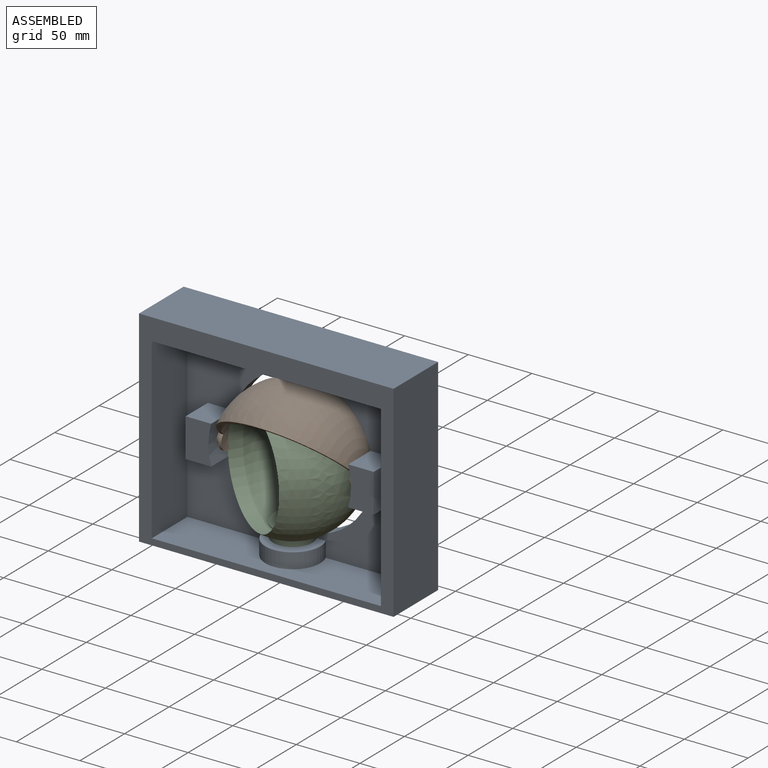
[diagram: assembled view]
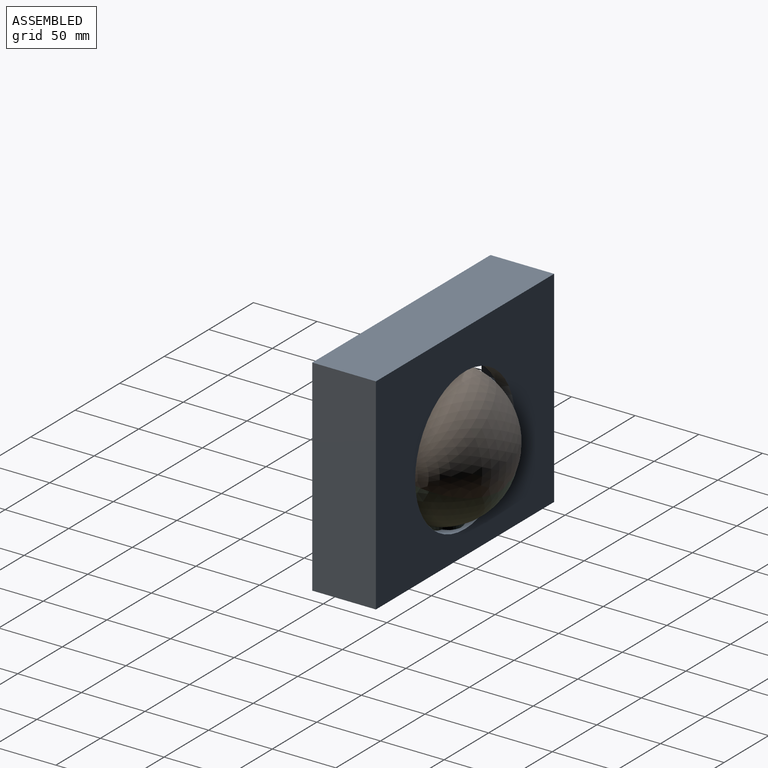
[diagram: assembled view, second angle]
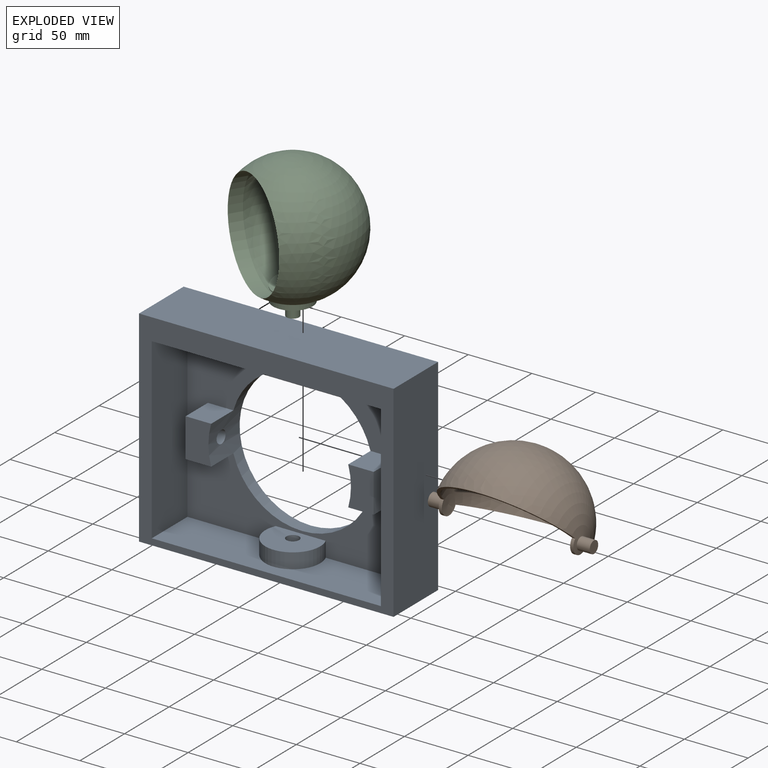
[diagram: exploded view]
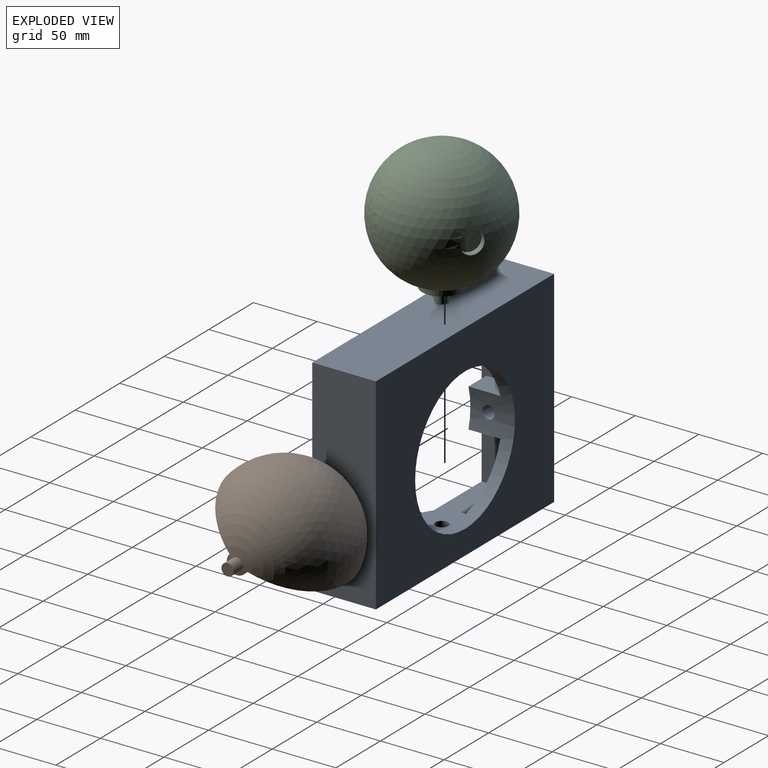
[diagram: exploded view, second angle]
ASSEMBLY  parts=3 mates=2
PART A: 26 faces, bbox 200x50x162 mm
  f0: plane 180x140mm, normal (0,-1,0), area 13741.6mm2, adj f1,f3,f4,f5,f6,f11,f12,f13
  f1: cylinder r=56mm len=112mm, axis (0,1,0), area 4908.5mm2, adj f0,f2,f11,f12,f14,f15,f17,f18
  f2: plane 200x162mm, normal (0,1,0), area 22548mm2, adj f1,f7,f8,f9,f21
  f3: plane 140x40mm, normal (-1,0,0), area 5600mm2, adj f0,f4,f6,f10
  f4: plane 180x40mm, normal (0,0,-1), area 7200mm2, adj f0,f3,f5,f10
  f5: plane 140x40mm, normal (1,0,0), area 5600mm2, adj f0,f4,f6,f10
  f6: plane 180x40mm, normal (0,0,1), area 6095.3mm2, adj f0,f3,f5,f10,f22
  f7: plane 162x50mm, normal (1,0,0), area 8100mm2, adj f2,f9,f10,f21
  f8: plane 162x50mm, normal (-1,0,0), area 8100mm2, adj f2,f9,f10,f21
  f9: plane 200x50mm, normal (0,0,-1), area 10000mm2, adj f2,f7,f8,f10
  f10: plane 200x162mm, normal (0,-1,0), area 7200mm2, adj f3,f4,f5,f6,f7,f8,f9,f21
  f11: plane 25x20mm, normal (0,0,1), area 500mm2, adj f0,f1,f13,f14
  f12: plane 25x20mm, normal (0,0,-1), area 500mm2, adj f0,f1,f13,f14
  f13: plane 30.55x25mm, normal (1,0,0), area 685.1mm2, adj f0,f11,f12,f14,f20
  f14: plane 30.55x20mm, normal (0,-1,0), area 567.5mm2, adj f1,f11,f12,f13
  f15: plane 25x20mm, normal (0,0,1), area 500mm2, adj f0,f1,f16,f18
  f16: plane 30.55x25mm, normal (-1,0,0), area 685.1mm2, adj f0,f15,f17,f18,f19
  f17: plane 25x20mm, normal (0,0,-1), area 500mm2, adj f0,f1,f16,f18
  f18: plane 30.55x20mm, normal (0,-1,0), area 567.5mm2, adj f1,f15,f16,f17
  f19: cylinder r=5mm len=18.1mm, axis (1,0,0), area 565.1mm2, adj f1,f16
  f20: cylinder r=5mm len=18.1mm, axis (1,0,0), area 565.1mm2, adj f1,f13
  f21: plane 200x50mm, normal (0,0,1), area 10000mm2, adj f2,f7,f8,f10
  f22: cylinder r=21.57mm len=43.14mm, axis (0,0,-1), area 1034.1mm2, adj f0,f6,f23
  f23: plane 43.14x30.5mm, normal (0,0,1), area 1026.2mm2, adj f0,f22,f24
  f24: cylinder r=5mm len=12mm, axis (0,0,-1), area 377mm2, adj f23,f25
  f25: plane 10x10mm, normal (0,0,1), area 78.5mm2, adj f24
PART B: 10 faces, bbox 107x107x127 mm
  f0: plane 105.8x42.76mm, normal (-0.34,-0.94,0), area 370.1mm2, adj f3,f6,f8,f9
  f1: plane 105.8x45.5mm, normal (0,-1,0), area 370.1mm2, adj f3,f6,f8,f9
  f2: cylinder r=5.03mm len=10.24mm, axis (0,0,-1), area 323.5mm2, adj f3,f7
  f3: sphere r=53.5mm, area 16058.6mm2, adj f0,f1,f2,f4,f8,f9
  f4: cylinder r=4.77mm len=10.21mm, axis (0,0,-1), area 306.2mm2, adj f3,f5
  f5: plane 9.54x9.54mm, normal (0,0,1), area 71.5mm2, adj f4
  f6: sphere r=51mm, area 14751.4mm2, adj f0,f1,f8,f9
  f7: plane 10.06x10.06mm, normal (0,0,-1), area 79.5mm2, adj f2
  f8: cylinder r=8mm len=16mm, axis (0,0,-1), area 70.6mm2, adj f0,f1,f3,f6
  f9: cylinder r=8mm len=16mm, axis (0,0,-1), area 70.6mm2, adj f0,f1,f3,f6
PART C: 14 faces, bbox 100x100x112.6 mm
  f0: plane 12.84x6.82mm, normal (0,0,1), area 61.5mm2, adj f8,f10,f13
  f1: plane 12.84x6.82mm, normal (0,0,1), area 61.5mm2, adj f8,f10,f13
  f2: sphere r=50mm, area 23365.8mm2, adj f5,f7,f12
  f3: cylinder r=4.9mm len=10.58mm, axis (0,0,1), area 325.8mm2, adj f4,f6
  f4: plane 9.8x9.8mm, normal (0,0,-1), area 75.4mm2, adj f3
  f5: cylinder r=15.5mm len=31mm, axis (0,0,1), area 434.5mm2, adj f2,f6
  f6: plane 31x31mm, normal (0,0,-1), area 679.1mm2, adj f3,f5
  f7: cylinder r=41.69mm len=83.39mm, axis (0,1,0), area 2794.5mm2, adj f2,f9
  f8: cylinder r=15.5mm len=42.25mm, axis (0,0,1), area 2032.3mm2, adj f0,f1,f9,f10,f11,f13
  f9: sphere r=45mm, area 16493.8mm2, adj f7,f8,f12
  f10: plane 41.69x31mm, normal (0,-1,0), area 1143.6mm2, adj f0,f1,f8,f11,f13
  f11: cylinder r=41.69mm len=31mm, axis (0,1,0), area 384.1mm2, adj f8,f10
  f12: cylinder r=8.68mm len=17.36mm, axis (0,-1,0), area 277.4mm2, adj f2,f9
  f13: cylinder r=8.68mm len=17.36mm, axis (0,-1,0), area 387.2mm2, adj f0,f1,f8,f10
PLACE A t=(9.71,-12.14,16.97)mm fixed
PLACE B rot(axis=(0.48,0.73,0.48),107.7deg) t=(-204.94,-173.54,76.74)mm
PLACE C rot(axis=(0,0,-1),31.6deg) t=(-206.06,-31.07,11.97)mm
MATE revolute A.f19 <-> B.f2  axis (1,0,0) through (-149.44,-32.87,16.97)mm
MATE revolute A.f22 <-> C.f5  axis (0,0,-1) through (-206.06,-31.07,-53.03)mm
